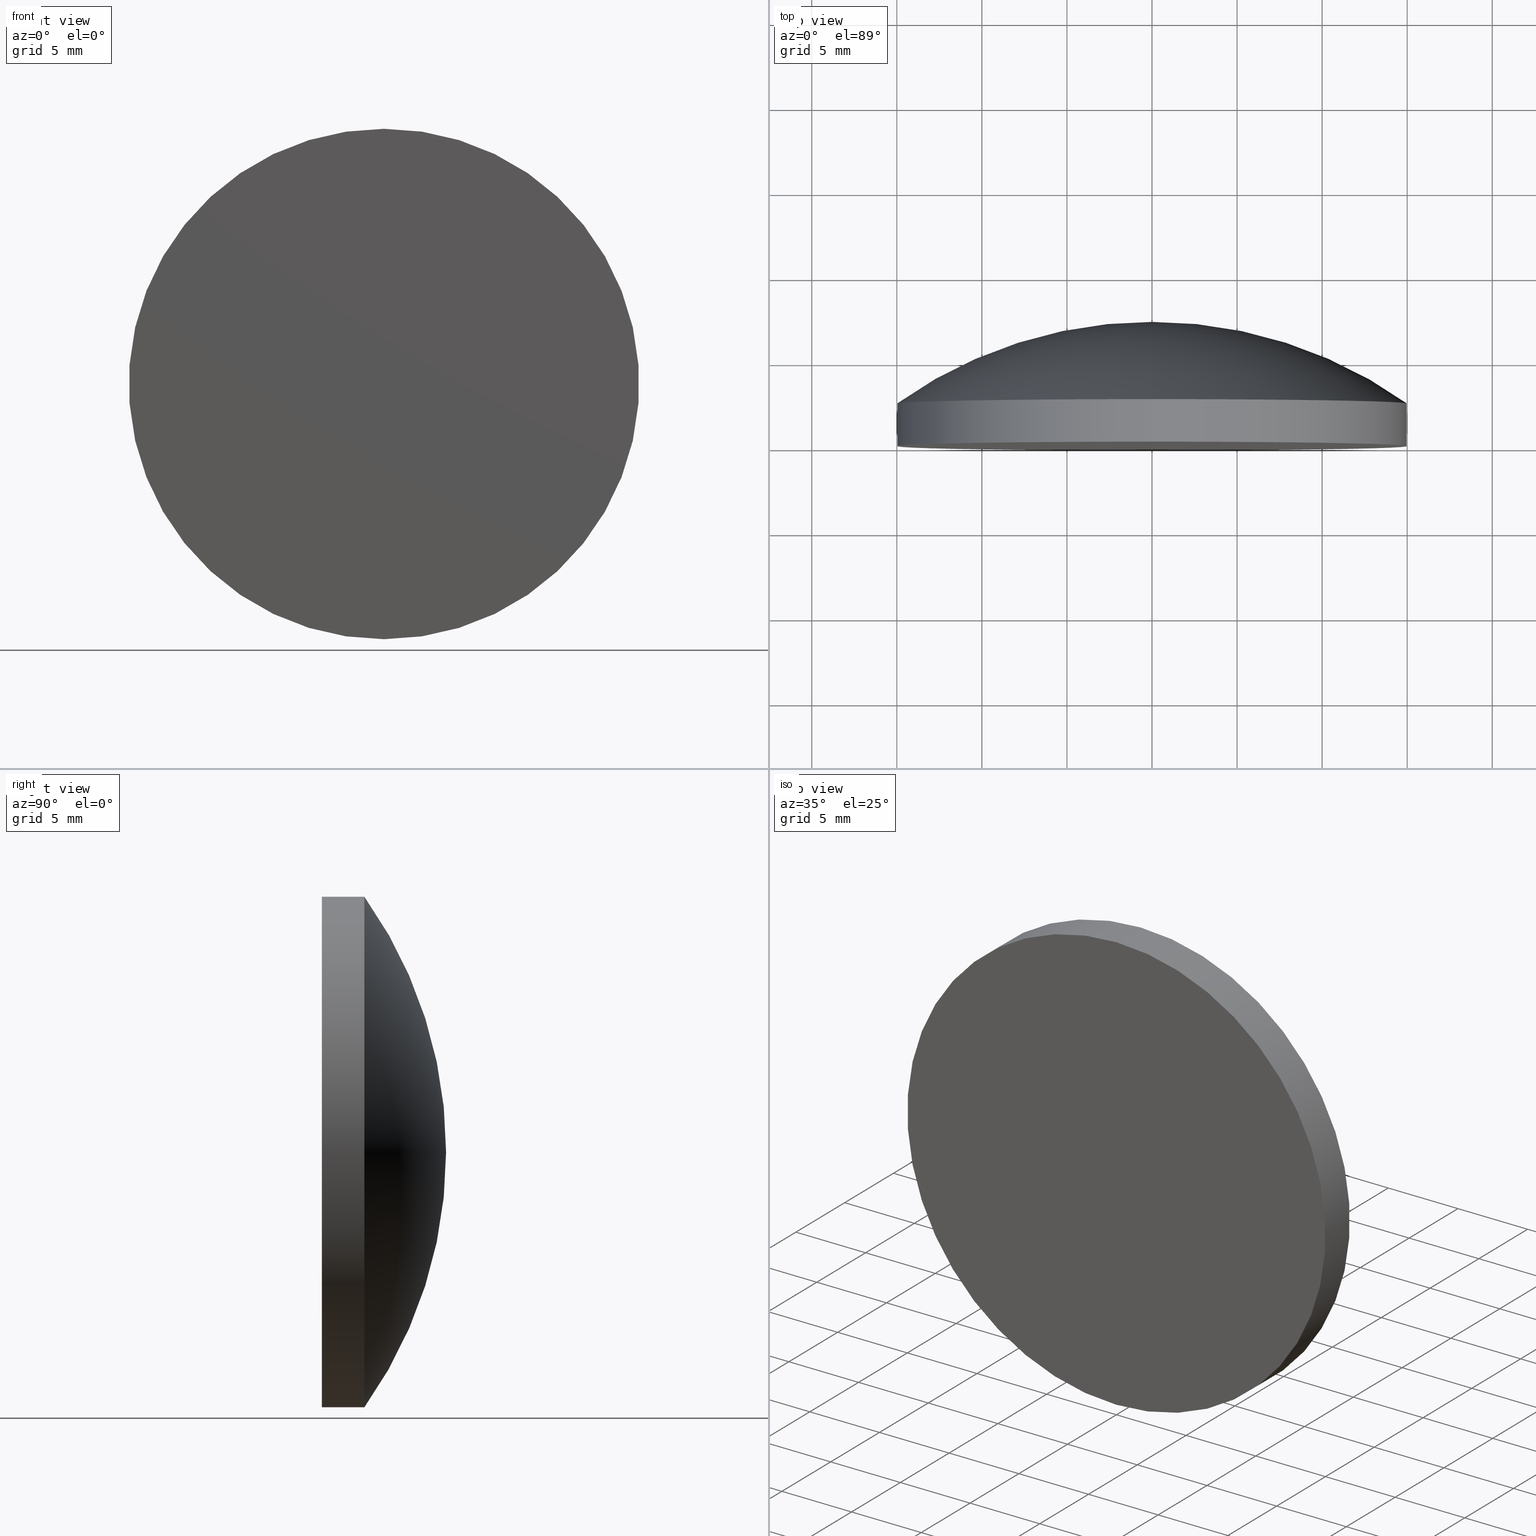
[diagram: canonical four-view strip — front | top / right | iso, engineering-drawing reading convention]
A machine part, canonical four-view strip (front | top / right | iso — engineering-drawing reading convention). The complete STEP part file that produces these views, byte-faithful:
ISO-10303-21;
HEADER;
FILE_DESCRIPTION (( 'STEP AP203' ),
    '1' );
FILE_NAME ('100549.STEP',
    '2024-05-09T01:10:08',
    ( '' ),
    ( '' ),
    'SwSTEP 2.0',
    'SolidWorks 2020',
    '' );
FILE_SCHEMA (( 'CONFIG_CONTROL_DESIGN' ));
ENDSEC;

DATA;
#1 = CC_DESIGN_PERSON_AND_ORGANIZATION_ASSIGNMENT ( #141, #180, ( #16 ) ) ;
#2 = DESIGN_CONTEXT ( 'detailed design', #171, 'design' ) ;
#3 = ORIENTED_EDGE ( 'NONE', *, *, #199, .F. ) ;
#4 = DATE_AND_TIME ( #41, #79 ) ;
#5 = AXIS2_PLACEMENT_3D ( 'NONE', #71, #136, #40 ) ;
#6 = UNCERTAINTY_MEASURE_WITH_UNIT (LENGTH_MEASURE( 1.000000000000000082E-05 ), #146, 'distance_accuracy_value', 'NONE');
#7 = ADVANCED_FACE ( 'NONE', ( #197 ), #174, .T. ) ;
#8 = DATE_AND_TIME ( #145, #124 ) ;
#9 = AXIS2_PLACEMENT_3D ( 'NONE', #34, #88, #152 ) ;
#10 = CARTESIAN_POINT ( 'NONE',  ( 0.000000000000000000, -1.734723475976807094E-15, 0.000000000000000000 ) ) ;
#11 = CIRCLE ( 'NONE', #55, 15.00000000000000000 ) ;
#12 = EDGE_CURVE ( 'NONE', #169, #70, #117, .T. ) ;
#13 = ORIENTED_EDGE ( 'NONE', *, *, #50, .T. ) ;
#14 = CYLINDRICAL_SURFACE ( 'NONE', #183, 15.00000000000000000 ) ;
#15 = FACE_OUTER_BOUND ( 'NONE', #31, .T. ) ;
#16 = PRODUCT_DEFINITION_FORMATION_WITH_SPECIFIED_SOURCE ( '�κ�', '', #149, .NOT_KNOWN. ) ;
#17 = CIRCLE ( 'NONE', #181, 25.84000000000000696 ) ;
#18 = PERSON_AND_ORGANIZATION_ROLE ( 'design_owner' ) ;
#19 = AXIS2_PLACEMENT_3D ( 'NONE', #52, #64, #102 ) ;
#20 = ORIENTED_EDGE ( 'NONE', *, *, #199, .T. ) ;
#21 = COORDINATED_UNIVERSAL_TIME_OFFSET ( 8, 0, .AHEAD. ) ;
#22 = CC_DESIGN_PERSON_AND_ORGANIZATION_ASSIGNMENT ( #96, #106, ( #33 ) ) ;
#23 = APPLICATION_PROTOCOL_DEFINITION ( 'international standard', 'config_control_design', 1994, #157 ) ;
#24 =( GEOMETRIC_REPRESENTATION_CONTEXT ( 3 ) GLOBAL_UNCERTAINTY_ASSIGNED_CONTEXT ( ( #6 ) ) GLOBAL_UNIT_ASSIGNED_CONTEXT ( ( #146, #42, #160 ) ) REPRESENTATION_CONTEXT ( 'NONE', 'WORKASPACE' ) );
#25 = COORDINATED_UNIVERSAL_TIME_OFFSET ( 8, 0, .AHEAD. ) ;
#26 = APPROVAL_ROLE ( '' ) ;
#27 = CARTESIAN_POINT ( 'NONE',  ( 0.000000000000000000, -1.734723475976807094E-15, 15.00000000000000000 ) ) ;
#28 = PERSON_AND_ORGANIZATION ( #93, #36 ) ;
#29 = DIRECTION ( 'NONE',  ( -0.000000000000000000, 1.000000000000000000, -0.000000000000000000 ) ) ;
#30 = APPROVAL_PERSON_ORGANIZATION ( #28, #75, #176 ) ;
#31 = EDGE_LOOP ( 'NONE', ( #151, #132, #195 ) ) ;
#32 = ORIENTED_EDGE ( 'NONE', *, *, #173, .F. ) ;
#33 = PRODUCT_DEFINITION ( 'δ֪', '', #16, #2 ) ;
#34 = CARTESIAN_POINT ( 'NONE',  ( 0.000000000000000000, -18.53999998761622692, 0.000000000000000000 ) ) ;
#35 = FACE_OUTER_BOUND ( 'NONE', #178, .T. ) ;
#36 = ORGANIZATION ( 'δָ��', 'δָ��', '' ) ;
#37 = AXIS2_PLACEMENT_3D ( 'NONE', #86, #147, #150 ) ;
#38 = DIRECTION ( 'NONE',  ( 1.000000000000000000, 0.000000000000000000, 0.000000000000000000 ) ) ;
#39 = DATE_TIME_ROLE ( 'creation_date' ) ;
#40 = DIRECTION ( 'NONE',  ( 0.000000000000000000, 0.000000000000000000, 1.000000000000000000 ) ) ;
#41 = CALENDAR_DATE ( 2024, 9, 5 ) ;
#42 =( NAMED_UNIT ( * ) PLANE_ANGLE_UNIT ( ) SI_UNIT ( $, .RADIAN. ) );
#43 = CARTESIAN_POINT ( 'NONE',  ( 0.000000000000000000, -1.734723475976807094E-15, 0.000000000000000000 ) ) ;
#44 = CALENDAR_DATE ( 2024, 9, 5 ) ;
#45 = CARTESIAN_POINT ( 'NONE',  ( 0.000000000000000000, 2.499999999999998224, 15.00000000000000178 ) ) ;
#46 = EDGE_LOOP ( 'NONE', ( #76, #48 ) ) ;
#47 = CC_DESIGN_SECURITY_CLASSIFICATION ( #198, ( #16 ) ) ;
#48 = ORIENTED_EDGE ( 'NONE', *, *, #12, .F. ) ;
#49 = AXIS2_PLACEMENT_3D ( 'NONE', #137, #170, #182 ) ;
#50 = EDGE_CURVE ( 'NONE', #70, #169, #11, .T. ) ;
#51 = TOROIDAL_SURFACE ( 'NONE', #9, -0.0007999960371955425198, 25.84000000000000696 ) ;
#52 = CARTESIAN_POINT ( 'NONE',  ( 0.000000000000000000, -18.53999998761622692, -0.0007999960371955425198 ) ) ;
#53 = APPROVAL ( #194, 'δָ��' ) ;
#54 = LOCAL_TIME ( 9, 10, 8.000000000000000000, #84 ) ;
#55 = AXIS2_PLACEMENT_3D ( 'NONE', #10, #69, #193 ) ;
#56 = PERSON_AND_ORGANIZATION ( #93, #36 ) ;
#57 = CARTESIAN_POINT ( 'NONE',  ( 0.000000000000000000, 7.299999999999999822, 15.00000000000000000 ) ) ;
#58 = CARTESIAN_POINT ( 'NONE',  ( 1.836970198721029589E-15, 7.299999999999999822, -15.00000000000000000 ) ) ;
#59 = ORIENTED_EDGE ( 'NONE', *, *, #173, .T. ) ;
#60 = DIRECTION ( 'NONE',  ( 1.224646799147353207E-16, 0.000000000000000000, -1.000000000000000000 ) ) ;
#61 = ORIENTED_EDGE ( 'NONE', *, *, #108, .T. ) ;
#62 = ORIENTED_EDGE ( 'NONE', *, *, #108, .F. ) ;
#63 = CC_DESIGN_APPROVAL ( #140, ( #33 ) ) ;
#64 = DIRECTION ( 'NONE',  ( -1.000000000000000000, 0.000000000000000000, 0.000000000000000000 ) ) ;
#65 = CLOSED_SHELL ( 'NONE', ( #156, #7, #163, #138, #134 ) ) ;
#66 = CIRCLE ( 'NONE', #19, 25.84000000000000696 ) ;
#67 = DIRECTION ( 'NONE',  ( -0.000000000000000000, 1.000000000000000000, -0.000000000000000000 ) ) ;
#68 = DATE_AND_TIME ( #80, #54 ) ;
#69 = DIRECTION ( 'NONE',  ( -0.000000000000000000, 1.000000000000000000, -0.000000000000000000 ) ) ;
#70 = VERTEX_POINT ( 'NONE', #27 ) ;
#71 = CARTESIAN_POINT ( 'NONE',  ( 0.000000000000000000, 2.499999999999997780, 0.000000000000000000 ) ) ;
#72 = DIRECTION ( 'NONE',  ( 0.000000000000000000, 0.000000000000000000, 1.000000000000000000 ) ) ;
#73 = APPROVAL_PERSON_ORGANIZATION ( #109, #53, #26 ) ;
#74 = APPROVAL_STATUS ( 'not_yet_approved' ) ;
#75 = APPROVAL ( #81, 'δָ��' ) ;
#76 = ORIENTED_EDGE ( 'NONE', *, *, #50, .F. ) ;
#77 = DATE_AND_TIME ( #44, #172 ) ;
#78 = MECHANICAL_CONTEXT ( 'NONE', #157, 'mechanical' ) ;
#79 = LOCAL_TIME ( 9, 10, 8.000000000000000000, #113 ) ;
#80 = CALENDAR_DATE ( 2024, 9, 5 ) ;
#81 = APPROVAL_STATUS ( 'not_yet_approved' ) ;
#82 = DIRECTION ( 'NONE',  ( -0.000000000000000000, 1.000000000000000000, -0.000000000000000000 ) ) ;
#83 = CYLINDRICAL_SURFACE ( 'NONE', #90, 15.00000000000000000 ) ;
#84 = COORDINATED_UNIVERSAL_TIME_OFFSET ( 8, 0, .AHEAD. ) ;
#85 = VERTEX_POINT ( 'NONE', #45 ) ;
#86 = CARTESIAN_POINT ( 'NONE',  ( 0.000000000000000000, -18.53999998761622692, 0.000000000000000000 ) ) ;
#87 = CC_DESIGN_PERSON_AND_ORGANIZATION_ASSIGNMENT ( #161, #165, ( #198 ) ) ;
#88 = DIRECTION ( 'NONE',  ( -0.000000000000000000, 1.000000000000000000, -0.000000000000000000 ) ) ;
#89 = DIRECTION ( 'NONE',  ( -0.000000000000000000, 1.000000000000000000, -0.000000000000000000 ) ) ;
#90 = AXIS2_PLACEMENT_3D ( 'NONE', #196, #184, #72 ) ;
#91 = PERSON_AND_ORGANIZATION ( #93, #36 ) ;
#92 = CC_DESIGN_DATE_AND_TIME_ASSIGNMENT ( #68, #175, ( #198 ) ) ;
#93 = PERSON ( 'δָ��', 'δָ��', 'δָ��', ('δָ��'), ('δָ��'), ('δָ��') ) ;
#94 = PERSON_AND_ORGANIZATION_ROLE ( 'creator' ) ;
#95 = CC_DESIGN_PERSON_AND_ORGANIZATION_ASSIGNMENT ( #105, #18, ( #149 ) ) ;
#96 = PERSON_AND_ORGANIZATION ( #93, #36 ) ;
#97 = FACE_OUTER_BOUND ( 'NONE', #133, .T. ) ;
#98 = LINE ( 'NONE', #58, #201 ) ;
#99 = CC_DESIGN_DATE_AND_TIME_ASSIGNMENT ( #77, #39, ( #33 ) ) ;
#100 = VERTEX_POINT ( 'NONE', #191 ) ;
#101 = AXIS2_PLACEMENT_3D ( 'NONE', #164, #128, #167 ) ;
#102 = DIRECTION ( 'NONE',  ( 0.000000000000000000, 0.000000000000000000, 1.000000000000000000 ) ) ;
#103 = FACE_OUTER_BOUND ( 'NONE', #46, .T. ) ;
#104 = CC_DESIGN_APPROVAL ( #75, ( #16 ) ) ;
#105 = PERSON_AND_ORGANIZATION ( #93, #36 ) ;
#106 = PERSON_AND_ORGANIZATION_ROLE ( 'creator' ) ;
#107 = CIRCLE ( 'NONE', #101, 15.00000000000000000 ) ;
#108 = EDGE_CURVE ( 'NONE', #169, #100, #98, .T. ) ;
#109 = PERSON_AND_ORGANIZATION ( #93, #36 ) ;
#110 = CARTESIAN_POINT ( 'NONE',  ( -9.797125862820881380E-20, -18.53999998761622692, 0.0007999960371955425198 ) ) ;
#111 = CARTESIAN_POINT ( 'NONE',  ( 0.000000000000000000, 0.000000000000000000, 0.000000000000000000 ) ) ;
#112 = ORIENTED_EDGE ( 'NONE', *, *, #119, .F. ) ;
#113 = COORDINATED_UNIVERSAL_TIME_OFFSET ( 8, 0, .AHEAD. ) ;
#114 = EDGE_LOOP ( 'NONE', ( #59, #192, #166 ) ) ;
#115 = VECTOR ( 'NONE', #82, 1000.000000000000000 ) ;
#116 = APPROVAL_DATE_TIME ( #162, #140 ) ;
#117 = CIRCLE ( 'NONE', #188, 15.00000000000000000 ) ;
#118 = PLANE ( 'NONE',  #49 ) ;
#119 = EDGE_CURVE ( 'NONE', #100, #85, #107, .T. ) ;
#120 = CARTESIAN_POINT ( 'NONE',  ( 0.000000000000000000, 7.299999999999999822, 0.000000000000000000 ) ) ;
#121 = APPROVAL_ROLE ( '' ) ;
#122 = PRODUCT_RELATED_PRODUCT_CATEGORY ( 'detail', '', ( #149 ) ) ;
#123 = EDGE_CURVE ( 'NONE', #100, #158, #17, .T. ) ;
#124 = LOCAL_TIME ( 9, 10, 8.000000000000000000, #143 ) ;
#125 = PRODUCT_DEFINITION_SHAPE ( 'NONE', 'NONE',  #33 ) ;
#126 = SECURITY_CLASSIFICATION_LEVEL ( 'unclassified' ) ;
#127 = MANIFOLD_SOLID_BREP ( '��ת1', #65 ) ;
#128 = DIRECTION ( 'NONE',  ( -0.000000000000000000, 1.000000000000000000, -0.000000000000000000 ) ) ;
#129 = CC_DESIGN_PERSON_AND_ORGANIZATION_ASSIGNMENT ( #56, #94, ( #16 ) ) ;
#130 = ORIENTED_EDGE ( 'NONE', *, *, #12, .T. ) ;
#131 = DIRECTION ( 'NONE',  ( 1.000000000000000000, 0.000000000000000000, 1.224646799147353207E-16 ) ) ;
#132 = ORIENTED_EDGE ( 'NONE', *, *, #119, .T. ) ;
#133 = EDGE_LOOP ( 'NONE', ( #62, #130, #20, #112 ) ) ;
#134 = ADVANCED_FACE ( 'NONE', ( #97 ), #83, .T. ) ;
#135 = AXIS2_PLACEMENT_3D ( 'NONE', #111, #177, #38 ) ;
#136 = DIRECTION ( 'NONE',  ( -0.000000000000000000, 1.000000000000000000, -0.000000000000000000 ) ) ;
#137 = CARTESIAN_POINT ( 'NONE',  ( 0.000000000000000000, -9.184850993605147944E-16, 0.000000000000000000 ) ) ;
#138 = ADVANCED_FACE ( 'NONE', ( #103 ), #118, .T. ) ;
#139 = APPLICATION_PROTOCOL_DEFINITION ( 'international standard', 'config_control_design', 1994, #171 ) ;
#140 = APPROVAL ( #74, 'δָ��' ) ;
#141 = PERSON_AND_ORGANIZATION ( #93, #36 ) ;
#142 = LOCAL_TIME ( 9, 10, 8.000000000000000000, #25 ) ;
#143 = COORDINATED_UNIVERSAL_TIME_OFFSET ( 8, 0, .AHEAD. ) ;
#144 = LINE ( 'NONE', #57, #115 ) ;
#145 = CALENDAR_DATE ( 2024, 9, 5 ) ;
#146 =( LENGTH_UNIT ( ) NAMED_UNIT ( * ) SI_UNIT ( .MILLI., .METRE. ) );
#147 = DIRECTION ( 'NONE',  ( -0.000000000000000000, 1.000000000000000000, -0.000000000000000000 ) ) ;
#148 = APPROVAL_DATE_TIME ( #8, #53 ) ;
#149 = PRODUCT ( '100549', '100549', '', ( #78 ) ) ;
#150 = DIRECTION ( 'NONE',  ( 0.000000000000000000, 0.000000000000000000, 1.000000000000000000 ) ) ;
#151 = ORIENTED_EDGE ( 'NONE', *, *, #123, .F. ) ;
#152 = DIRECTION ( 'NONE',  ( 0.000000000000000000, 0.000000000000000000, 1.000000000000000000 ) ) ;
#153 = CARTESIAN_POINT ( 'NONE',  ( 0.000000000000000000, 7.299999999999999822, 0.000000000000000000 ) ) ;
#154 = CC_DESIGN_APPROVAL ( #53, ( #198 ) ) ;
#155 = EDGE_CURVE ( 'NONE', #85, #158, #66, .T. ) ;
#156 = ADVANCED_FACE ( 'NONE', ( #35 ), #14, .T. ) ;
#157 = APPLICATION_CONTEXT ( 'configuration controlled 3d designs of mechanical parts and assemblies' ) ;
#158 = VERTEX_POINT ( 'NONE', #153 ) ;
#159 = SHAPE_DEFINITION_REPRESENTATION ( #125, #186 ) ;
#160 =( NAMED_UNIT ( * ) SI_UNIT ( $, .STERADIAN. ) SOLID_ANGLE_UNIT ( ) );
#161 = PERSON_AND_ORGANIZATION ( #93, #36 ) ;
#162 = DATE_AND_TIME ( #190, #142 ) ;
#163 = ADVANCED_FACE ( 'NONE', ( #15 ), #51, .T. ) ;
#164 = CARTESIAN_POINT ( 'NONE',  ( 0.000000000000000000, 2.499999999999997780, 0.000000000000000000 ) ) ;
#165 = PERSON_AND_ORGANIZATION_ROLE ( 'classification_officer' ) ;
#166 = ORIENTED_EDGE ( 'NONE', *, *, #155, .F. ) ;
#167 = DIRECTION ( 'NONE',  ( 0.000000000000000000, 0.000000000000000000, 1.000000000000000000 ) ) ;
#168 = CIRCLE ( 'NONE', #5, 15.00000000000000000 ) ;
#169 = VERTEX_POINT ( 'NONE', #200 ) ;
#170 = DIRECTION ( 'NONE',  ( 0.000000000000000000, -1.000000000000000000, 0.000000000000000000 ) ) ;
#171 = APPLICATION_CONTEXT ( 'configuration controlled 3d designs of mechanical parts and assemblies' ) ;
#172 = LOCAL_TIME ( 9, 10, 8.000000000000000000, #21 ) ;
#173 = EDGE_CURVE ( 'NONE', #85, #100, #168, .T. ) ;
#174 = TOROIDAL_SURFACE ( 'NONE', #37, -0.0007999960371955425198, 25.84000000000000696 ) ;
#175 = DATE_TIME_ROLE ( 'classification_date' ) ;
#176 = APPROVAL_ROLE ( '' ) ;
#177 = DIRECTION ( 'NONE',  ( 0.000000000000000000, 0.000000000000000000, 1.000000000000000000 ) ) ;
#178 = EDGE_LOOP ( 'NONE', ( #13, #61, #32, #3 ) ) ;
#179 = DIRECTION ( 'NONE',  ( 0.000000000000000000, 0.000000000000000000, 1.000000000000000000 ) ) ;
#180 = PERSON_AND_ORGANIZATION_ROLE ( 'design_supplier' ) ;
#181 = AXIS2_PLACEMENT_3D ( 'NONE', #110, #131, #60 ) ;
#182 = DIRECTION ( 'NONE',  ( 0.000000000000000000, -0.000000000000000000, -1.000000000000000000 ) ) ;
#183 = AXIS2_PLACEMENT_3D ( 'NONE', #120, #89, #185 ) ;
#184 = DIRECTION ( 'NONE',  ( -0.000000000000000000, 1.000000000000000000, -0.000000000000000000 ) ) ;
#185 = DIRECTION ( 'NONE',  ( 0.000000000000000000, 0.000000000000000000, 1.000000000000000000 ) ) ;
#186 = ADVANCED_BREP_SHAPE_REPRESENTATION ( '100549', ( #127, #135 ), #24 ) ;
#187 = APPROVAL_PERSON_ORGANIZATION ( #91, #140, #121 ) ;
#188 = AXIS2_PLACEMENT_3D ( 'NONE', #43, #67, #179 ) ;
#189 = APPROVAL_DATE_TIME ( #4, #75 ) ;
#190 = CALENDAR_DATE ( 2024, 9, 5 ) ;
#191 = CARTESIAN_POINT ( 'NONE',  ( 1.836970198721029589E-15, 2.499999999999998224, -15.00000000000000178 ) ) ;
#192 = ORIENTED_EDGE ( 'NONE', *, *, #123, .T. ) ;
#193 = DIRECTION ( 'NONE',  ( 0.000000000000000000, 0.000000000000000000, 1.000000000000000000 ) ) ;
#194 = APPROVAL_STATUS ( 'not_yet_approved' ) ;
#195 = ORIENTED_EDGE ( 'NONE', *, *, #155, .T. ) ;
#196 = CARTESIAN_POINT ( 'NONE',  ( 0.000000000000000000, 7.299999999999999822, 0.000000000000000000 ) ) ;
#197 = FACE_OUTER_BOUND ( 'NONE', #114, .T. ) ;
#198 = SECURITY_CLASSIFICATION ( '', '', #126 ) ;
#199 = EDGE_CURVE ( 'NONE', #70, #85, #144, .T. ) ;
#200 = CARTESIAN_POINT ( 'NONE',  ( 1.836970198721029589E-15, -1.734723475976807094E-15, -15.00000000000000000 ) ) ;
#201 = VECTOR ( 'NONE', #29, 1000.000000000000000 ) ;
ENDSEC;
END-ISO-10303-21;
